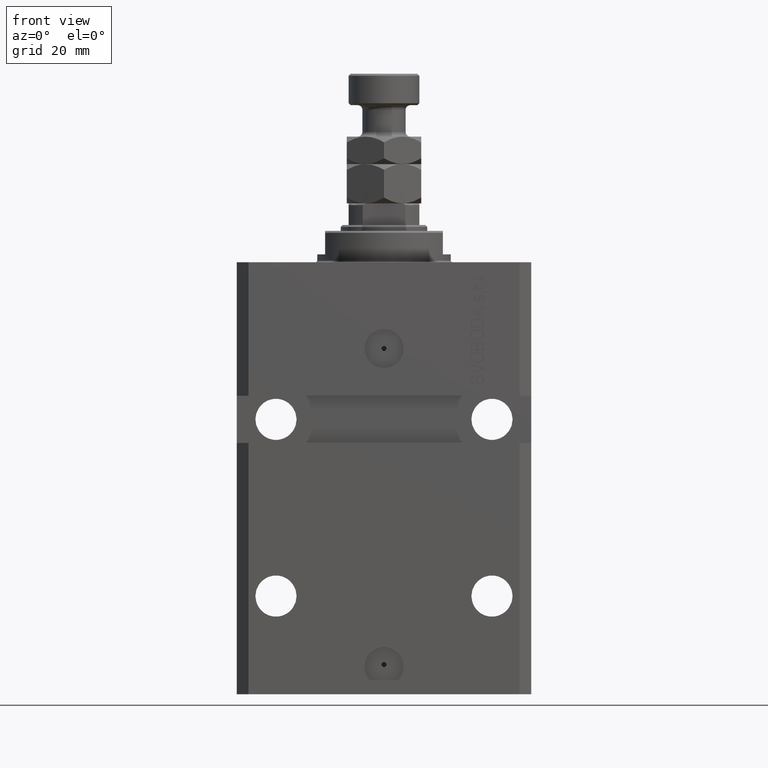
[diagram: clean part render]
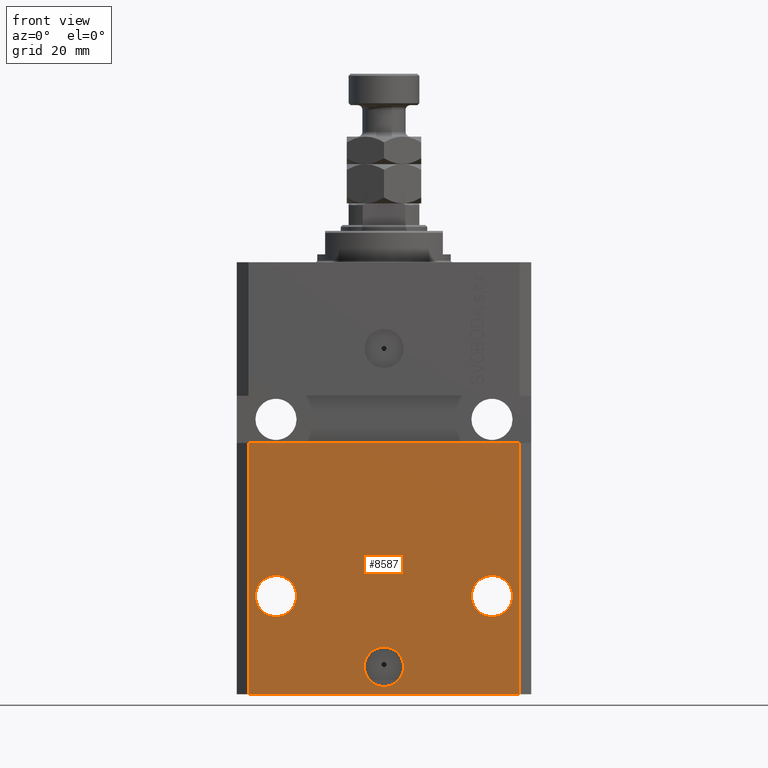
[diagram: same view with one face highlighted and labeled with its STEP entity id]
A machine part, front view. The second image highlights one B-rep face of the part: STEP entity #8587.
In plain terms, the highlighted planar face has unit normal (0, -1, 0).
Its self-contained STEP definition (entity closure, byte-faithful):
#175 = EDGE_CURVE ( 'NONE', #47571, #26948, #2440, .T. ) ;
#2177 = CARTESIAN_POINT ( 'NONE',  ( -34.49999999999998579, -27.49999999999999645, -110.0000000000000000 ) ) ;
#2440 = CIRCLE ( 'NONE', #30146, 5.249999999999994671 ) ;
#3458 = EDGE_LOOP ( 'NONE', ( #33037, #4336 ) ) ;
#3856 = VERTEX_POINT ( 'NONE', #46703 ) ;
#4336 = ORIENTED_EDGE ( 'NONE', *, *, #36474, .F. ) ;
#4621 = AXIS2_PLACEMENT_3D ( 'NONE', #38503, #20394, #11737 ) ;
#6007 = ORIENTED_EDGE ( 'NONE', *, *, #11770, .F. ) ;
#6058 = CARTESIAN_POINT ( 'NONE',  ( -27.50000000000001421, -27.50000000000000000, -84.99999999999998579 ) ) ;
#6396 = CARTESIAN_POINT ( 'NONE',  ( 0.000000000000000000, -27.49999999999999645, -103.0000000000000000 ) ) ;
#6472 = VERTEX_POINT ( 'NONE', #10834 ) ;
#7146 = DIRECTION ( 'NONE',  ( 1.176083712526788232E-16, -1.000000000000000000, 0.000000000000000000 ) ) ;
#7335 = VECTOR ( 'NONE', #16276, 1000.000000000000000 ) ;
#7365 = CARTESIAN_POINT ( 'NONE',  ( -34.49999999999998579, -27.50000000000000000, -46.00000000000000000 ) ) ;
#8227 = DIRECTION ( 'NONE',  ( 1.000000000000000000, 0.000000000000000000, 0.000000000000000000 ) ) ;
#8587 = ADVANCED_FACE ( 'NONE', ( #43816, #42834, #28442, #27950 ), #47065, .T. ) ;
#9656 = CIRCLE ( 'NONE', #11253, 5.249999999999994671 ) ;
#10795 = DIRECTION ( 'NONE',  ( -1.000000000000000000, 0.000000000000000000, 0.000000000000000000 ) ) ;
#10834 = CARTESIAN_POINT ( 'NONE',  ( 32.75000000000000711, -27.49999999999999289, -84.99999999999998579 ) ) ;
#10966 = LINE ( 'NONE', #30510, #48696 ) ;
#11215 = DIRECTION ( 'NONE',  ( 1.176083712526788232E-16, -1.000000000000000000, 0.000000000000000000 ) ) ;
#11253 = AXIS2_PLACEMENT_3D ( 'NONE', #12060, #7146, #22250 ) ;
#11422 = EDGE_LOOP ( 'NONE', ( #40986, #25237 ) ) ;
#11486 = AXIS2_PLACEMENT_3D ( 'NONE', #2177, #43330, #39121 ) ;
#11737 = DIRECTION ( 'NONE',  ( 1.000000000000000000, 0.000000000000000000, 0.000000000000000000 ) ) ;
#11770 = EDGE_CURVE ( 'NONE', #37090, #31347, #10966, .T. ) ;
#12060 = CARTESIAN_POINT ( 'NONE',  ( 27.50000000000001421, -27.49999999999999289, -84.99999999999998579 ) ) ;
#13095 = CARTESIAN_POINT ( 'NONE',  ( 34.49999999999999289, -27.49999999999999289, -46.00000000000000711 ) ) ;
#13121 = VERTEX_POINT ( 'NONE', #27289 ) ;
#13397 = EDGE_CURVE ( 'NONE', #26948, #47571, #46384, .T. ) ;
#15430 = CARTESIAN_POINT ( 'NONE',  ( 22.25000000000002132, -27.49999999999999289, -84.99999999999998579 ) ) ;
#15651 = CARTESIAN_POINT ( 'NONE',  ( 34.49999999999999289, -27.49999999999999645, -110.0000000000000000 ) ) ;
#16030 = CARTESIAN_POINT ( 'NONE',  ( -37.50000000000000000, -27.50000000000000000, -46.00000000000000000 ) ) ;
#16276 = DIRECTION ( 'NONE',  ( 1.000000000000000000, 9.251858538542972814E-17, -9.251858538542972814E-17 ) ) ;
#17673 = CARTESIAN_POINT ( 'NONE',  ( -34.49999999999998579, -27.49999999999999645, -110.0000000000000000 ) ) ;
#19257 = EDGE_CURVE ( 'NONE', #6472, #38230, #31504, .T. ) ;
#20394 = DIRECTION ( 'NONE',  ( 1.176083712526788232E-16, -1.000000000000000000, 0.000000000000000000 ) ) ;
#20777 = DIRECTION ( 'NONE',  ( 1.176083712526788232E-16, -1.000000000000000000, 0.000000000000000000 ) ) ;
#21169 = DIRECTION ( 'NONE',  ( 1.176083712526788232E-16, -1.000000000000000000, 0.000000000000000000 ) ) ;
#21693 = CARTESIAN_POINT ( 'NONE',  ( -27.50000000000001421, -27.50000000000000000, -84.99999999999998579 ) ) ;
#22250 = DIRECTION ( 'NONE',  ( 1.000000000000000000, 0.000000000000000000, 0.000000000000000000 ) ) ;
#23508 = VECTOR ( 'NONE', #28346, 1000.000000000000000 ) ;
#23590 = CARTESIAN_POINT ( 'NONE',  ( 0.000000000000000000, -27.49999999999999645, -103.0000000000000000 ) ) ;
#25237 = ORIENTED_EDGE ( 'NONE', *, *, #175, .F. ) ;
#25604 = ORIENTED_EDGE ( 'NONE', *, *, #30159, .F. ) ;
#26611 = DIRECTION ( 'NONE',  ( 0.000000000000000000, 0.000000000000000000, 1.000000000000000000 ) ) ;
#26948 = VERTEX_POINT ( 'NONE', #37933 ) ;
#27289 = CARTESIAN_POINT ( 'NONE',  ( -5.000000000000006217, -27.49999999999999645, -103.0000000000000000 ) ) ;
#27950 = FACE_OUTER_BOUND ( 'NONE', #32633, .T. ) ;
#28346 = DIRECTION ( 'NONE',  ( 1.000000000000000000, 0.000000000000000000, 0.000000000000000000 ) ) ;
#28442 = FACE_BOUND ( 'NONE', #11422, .T. ) ;
#28913 = AXIS2_PLACEMENT_3D ( 'NONE', #6396, #20777, #43830 ) ;
#29366 = EDGE_CURVE ( 'NONE', #38230, #6472, #9656, .T. ) ;
#29382 = CARTESIAN_POINT ( 'NONE',  ( -34.49999999999998579, -27.49999999999999645, -110.0000000000000000 ) ) ;
#30146 = AXIS2_PLACEMENT_3D ( 'NONE', #6058, #21169, #36289 ) ;
#30159 = EDGE_CURVE ( 'NONE', #31347, #33590, #35110, .T. ) ;
#30183 = ORIENTED_EDGE ( 'NONE', *, *, #19257, .F. ) ;
#30510 = CARTESIAN_POINT ( 'NONE',  ( -34.49999999999998579, -27.49999999999999645, -110.0000000000000000 ) ) ;
#30763 = LINE ( 'NONE', #15651, #35796 ) ;
#31347 = VERTEX_POINT ( 'NONE', #7365 ) ;
#31504 = CIRCLE ( 'NONE', #4621, 5.249999999999994671 ) ;
#32633 = EDGE_LOOP ( 'NONE', ( #25604, #6007, #42786, #48160 ) ) ;
#32744 = AXIS2_PLACEMENT_3D ( 'NONE', #23590, #11215, #8227 ) ;
#33037 = ORIENTED_EDGE ( 'NONE', *, *, #40118, .F. ) ;
#33288 = EDGE_CURVE ( 'NONE', #3856, #33590, #30763, .T. ) ;
#33590 = VERTEX_POINT ( 'NONE', #13095 ) ;
#35110 = LINE ( 'NONE', #16030, #7335 ) ;
#35116 = CIRCLE ( 'NONE', #32744, 5.000000000000006217 ) ;
#35796 = VECTOR ( 'NONE', #38945, 1000.000000000000000 ) ;
#36039 = CIRCLE ( 'NONE', #28913, 5.000000000000006217 ) ;
#36289 = DIRECTION ( 'NONE',  ( -1.000000000000000000, 0.000000000000000000, 0.000000000000000000 ) ) ;
#36474 = EDGE_CURVE ( 'NONE', #13121, #42555, #35116, .T. ) ;
#37090 = VERTEX_POINT ( 'NONE', #29382 ) ;
#37933 = CARTESIAN_POINT ( 'NONE',  ( -22.25000000000002132, -27.50000000000000000, -84.99999999999998579 ) ) ;
#38230 = VERTEX_POINT ( 'NONE', #15430 ) ;
#38503 = CARTESIAN_POINT ( 'NONE',  ( 27.50000000000001421, -27.49999999999999289, -84.99999999999998579 ) ) ;
#38945 = DIRECTION ( 'NONE',  ( 0.000000000000000000, 0.000000000000000000, 1.000000000000000000 ) ) ;
#39121 = DIRECTION ( 'NONE',  ( 0.000000000000000000, -0.000000000000000000, -1.000000000000000000 ) ) ;
#39258 = AXIS2_PLACEMENT_3D ( 'NONE', #21693, #48483, #10795 ) ;
#39804 = ORIENTED_EDGE ( 'NONE', *, *, #29366, .F. ) ;
#40118 = EDGE_CURVE ( 'NONE', #42555, #13121, #36039, .T. ) ;
#40986 = ORIENTED_EDGE ( 'NONE', *, *, #13397, .F. ) ;
#42555 = VERTEX_POINT ( 'NONE', #46178 ) ;
#42786 = ORIENTED_EDGE ( 'NONE', *, *, #47143, .T. ) ;
#42834 = FACE_BOUND ( 'NONE', #47318, .T. ) ;
#43330 = DIRECTION ( 'NONE',  ( 0.000000000000000000, -1.000000000000000000, 0.000000000000000000 ) ) ;
#43816 = FACE_BOUND ( 'NONE', #3458, .T. ) ;
#43830 = DIRECTION ( 'NONE',  ( 1.000000000000000000, 0.000000000000000000, 0.000000000000000000 ) ) ;
#46178 = CARTESIAN_POINT ( 'NONE',  ( 5.000000000000006217, -27.49999999999999645, -103.0000000000000000 ) ) ;
#46384 = CIRCLE ( 'NONE', #39258, 5.249999999999994671 ) ;
#46703 = CARTESIAN_POINT ( 'NONE',  ( 34.49999999999999289, -27.49999999999999645, -110.0000000000000000 ) ) ;
#47065 = PLANE ( 'NONE',  #11486 ) ;
#47143 = EDGE_CURVE ( 'NONE', #37090, #3856, #47460, .T. ) ;
#47318 = EDGE_LOOP ( 'NONE', ( #30183, #39804 ) ) ;
#47396 = CARTESIAN_POINT ( 'NONE',  ( -32.75000000000000711, -27.50000000000000000, -84.99999999999998579 ) ) ;
#47460 = LINE ( 'NONE', #17673, #23508 ) ;
#47571 = VERTEX_POINT ( 'NONE', #47396 ) ;
#48160 = ORIENTED_EDGE ( 'NONE', *, *, #33288, .T. ) ;
#48483 = DIRECTION ( 'NONE',  ( 1.176083712526788232E-16, -1.000000000000000000, 0.000000000000000000 ) ) ;
#48696 = VECTOR ( 'NONE', #26611, 1000.000000000000000 ) ;